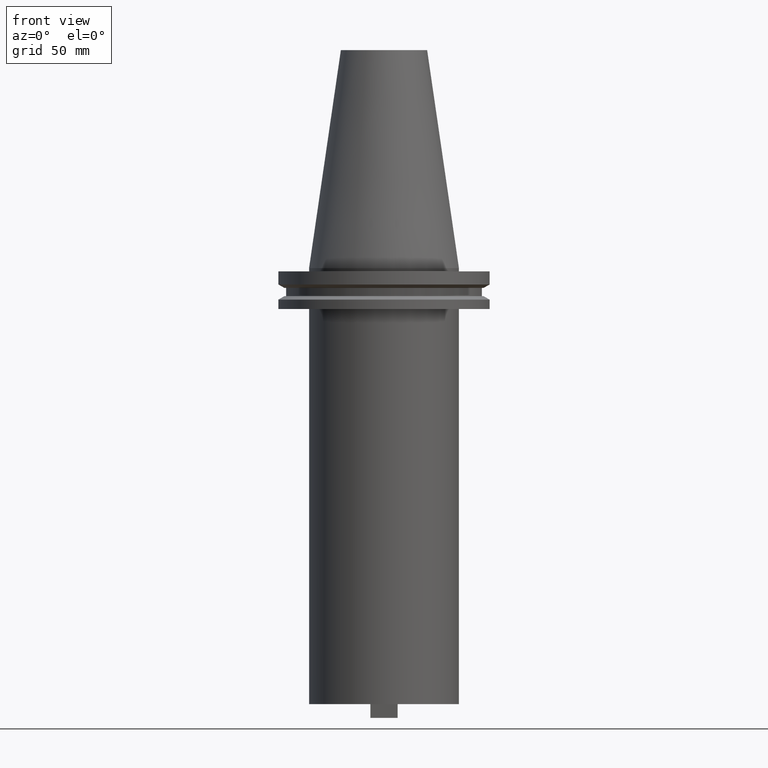
[diagram: clean part render]
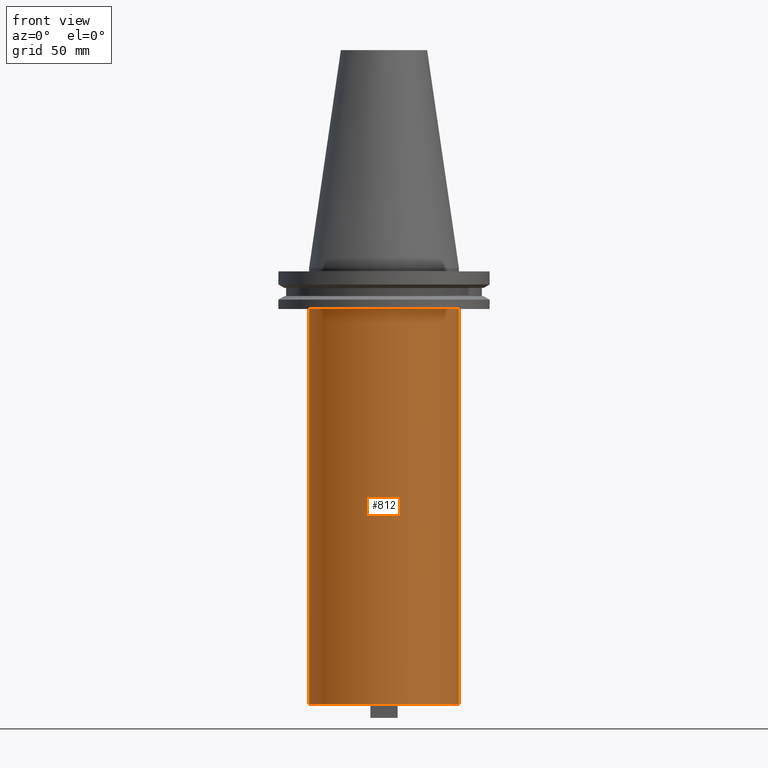
[diagram: same view with one face highlighted and labeled with its STEP entity id]
A machine part, front view. The second image highlights one B-rep face of the part: STEP entity #812.
In plain terms, the highlighted cylindrical surface (partial cylindrical patch) has radius 34.925 mm, axis along (-0, -0, 1).
Its self-contained STEP definition (entity closure, byte-faithful):
#7 = DIRECTION ( 'NONE',  ( -0.000000000000000000, -0.000000000000000000, 1.000000000000000000 ) ) ;
#25 = CIRCLE ( 'NONE', #596, 34.92499999999999716 ) ;
#49 = DIRECTION ( 'NONE',  ( 1.000000000000000000, 0.000000000000000000, 0.000000000000000000 ) ) ;
#59 = VECTOR ( 'NONE', #99, 1000.000000000000000 ) ;
#69 = CARTESIAN_POINT ( 'NONE',  ( -34.92499999999999716, 4.277078946022130887E-15, -19.04999999999999716 ) ) ;
#88 = LINE ( 'NONE', #413, #841 ) ;
#96 = DIRECTION ( 'NONE',  ( 1.000000000000000000, 0.000000000000000000, 0.000000000000000000 ) ) ;
#99 = DIRECTION ( 'NONE',  ( -0.000000000000000000, -0.000000000000000000, 1.000000000000000000 ) ) ;
#134 = ORIENTED_EDGE ( 'NONE', *, *, #917, .F. ) ;
#159 = FACE_OUTER_BOUND ( 'NONE', #502, .T. ) ;
#172 = VERTEX_POINT ( 'NONE', #846 ) ;
#233 = VERTEX_POINT ( 'NONE', #925 ) ;
#251 = VERTEX_POINT ( 'NONE', #69 ) ;
#340 = ORIENTED_EDGE ( 'NONE', *, *, #747, .T. ) ;
#342 = DIRECTION ( 'NONE',  ( -0.000000000000000000, -0.000000000000000000, 1.000000000000000000 ) ) ;
#413 = CARTESIAN_POINT ( 'NONE',  ( 34.92499999999999716, 0.000000000000000000, 101.5999999999999943 ) ) ;
#425 = DIRECTION ( 'NONE',  ( 1.000000000000000000, 0.000000000000000000, 0.000000000000000000 ) ) ;
#437 = DIRECTION ( 'NONE',  ( -0.000000000000000000, -0.000000000000000000, 1.000000000000000000 ) ) ;
#470 = CYLINDRICAL_SURFACE ( 'NONE', #791, 34.92499999999999716 ) ;
#502 = EDGE_LOOP ( 'NONE', ( #878, #992, #340, #134 ) ) ;
#551 = CARTESIAN_POINT ( 'NONE',  ( -34.92499999999999716, 4.277078946022130887E-15, 101.5999999999999943 ) ) ;
#552 = EDGE_CURVE ( 'NONE', #172, #954, #25, .T. ) ;
#555 = DIRECTION ( 'NONE',  ( -0.000000000000000000, -0.000000000000000000, 1.000000000000000000 ) ) ;
#557 = CIRCLE ( 'NONE', #807, 34.92499999999999716 ) ;
#560 = CARTESIAN_POINT ( 'NONE',  ( 0.000000000000000000, 0.000000000000000000, 101.5999999999999943 ) ) ;
#593 = CARTESIAN_POINT ( 'NONE',  ( 0.000000000000000000, 0.000000000000000000, -19.04999999999999716 ) ) ;
#596 = AXIS2_PLACEMENT_3D ( 'NONE', #661, #437, #49 ) ;
#634 = LINE ( 'NONE', #551, #59 ) ;
#661 = CARTESIAN_POINT ( 'NONE',  ( 0.000000000000000000, 0.000000000000000000, -203.1999999999999886 ) ) ;
#727 = EDGE_CURVE ( 'NONE', #172, #251, #634, .T. ) ;
#747 = EDGE_CURVE ( 'NONE', #954, #233, #88, .T. ) ;
#791 = AXIS2_PLACEMENT_3D ( 'NONE', #560, #555, #96 ) ;
#807 = AXIS2_PLACEMENT_3D ( 'NONE', #593, #342, #425 ) ;
#812 = ADVANCED_FACE ( 'NONE', ( #159 ), #470, .T. ) ;
#841 = VECTOR ( 'NONE', #7, 1000.000000000000000 ) ;
#846 = CARTESIAN_POINT ( 'NONE',  ( -34.92499999999999716, 4.277078946022130887E-15, -203.1999999999999886 ) ) ;
#878 = ORIENTED_EDGE ( 'NONE', *, *, #727, .F. ) ;
#907 = CARTESIAN_POINT ( 'NONE',  ( 34.92499999999999716, 0.000000000000000000, -203.1999999999999886 ) ) ;
#917 = EDGE_CURVE ( 'NONE', #251, #233, #557, .T. ) ;
#925 = CARTESIAN_POINT ( 'NONE',  ( 34.92499999999999716, 0.000000000000000000, -19.04999999999999716 ) ) ;
#954 = VERTEX_POINT ( 'NONE', #907 ) ;
#992 = ORIENTED_EDGE ( 'NONE', *, *, #552, .T. ) ;